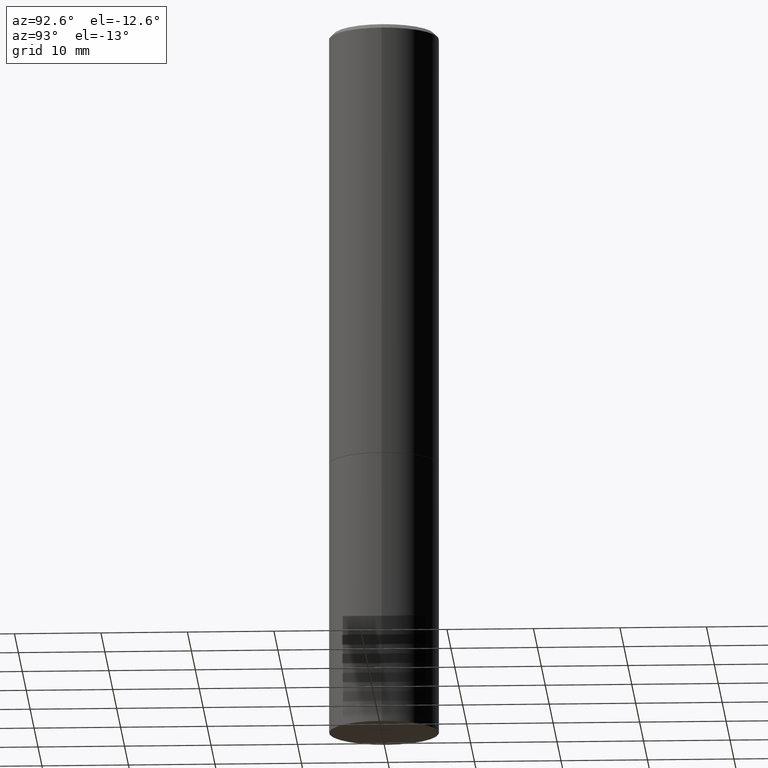
[diagram: clean part render]
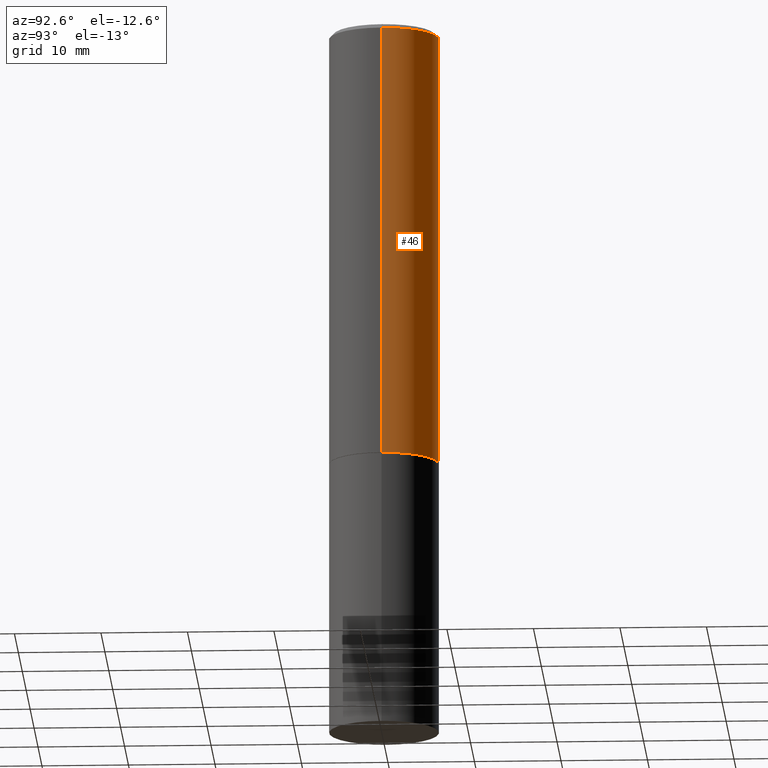
[diagram: same view with one face highlighted and labeled with its STEP entity id]
A machine part, auxiliary view. The second image highlights one B-rep face of the part: STEP entity #46.
In plain terms, the highlighted cylindrical surface (partial cylindrical patch) has radius 6.35 mm, axis along (-0, 0, 1).
Its self-contained STEP definition (entity closure, byte-faithful):
#16 = DIRECTION ( 'NONE',  ( -2.445468806185136877E-29, 3.491481338843145188E-15, 1.000000000000000000 ) ) ;
#20 = CARTESIAN_POINT ( 'NONE',  ( 4.890937612370288923E-31, -6.982962677686312563E-17, -0.02000000000000006287 ) ) ;
#23 = DIRECTION ( 'NONE',  ( -2.445468806185136597E-29, 3.491481338843145583E-15, 1.000000000000000000 ) ) ;
#46 = ADVANCED_FACE ( 'NONE', ( #223 ), #133, .T. ) ;
#49 = EDGE_CURVE ( 'NONE', #345, #295, #219, .T. ) ;
#54 = CARTESIAN_POINT ( 'NONE',  ( -0.2499999999999998890, 1.776356839400249676E-15, -1.229733772563726025E-29 ) ) ;
#58 = EDGE_LOOP ( 'NONE', ( #366, #308, #176, #188 ) ) ;
#66 = EDGE_CURVE ( 'NONE', #311, #251, #180, .T. ) ;
#76 = DIRECTION ( 'NONE',  ( -2.445468806185136597E-29, 3.491481338843145583E-15, 1.000000000000000000 ) ) ;
#77 = CIRCLE ( 'NONE', #279, 0.2500000000000000000 ) ;
#83 = AXIS2_PLACEMENT_3D ( 'NONE', #20, #76, #132 ) ;
#100 = DIRECTION ( 'NONE',  ( -2.445468806185136877E-29, 3.491481338843145188E-15, 1.000000000000000000 ) ) ;
#103 = EDGE_CURVE ( 'NONE', #311, #345, #77, .T. ) ;
#105 = CARTESIAN_POINT ( 'NONE',  ( -0.2500000000000000000, -1.748293572161903489E-15, -1.998999999999999888 ) ) ;
#132 = DIRECTION ( 'NONE',  ( 1.000000000000000000, -6.982962677686266711E-15, 0.000000000000000000 ) ) ;
#133 = CYLINDRICAL_SURFACE ( 'NONE', #211, 0.2499999999999998890 ) ;
#145 = VECTOR ( 'NONE', #16, 39.37007874015748143 ) ;
#160 = DIRECTION ( 'NONE',  ( 1.000000000000000000, -6.982962677686266711E-15, 4.876176775795935793E-29 ) ) ;
#168 = CARTESIAN_POINT ( 'NONE',  ( 0.000000000000000000, 0.000000000000000000, 0.000000000000000000 ) ) ;
#176 = ORIENTED_EDGE ( 'NONE', *, *, #252, .F. ) ;
#177 = DIRECTION ( 'NONE',  ( 1.000000000000000000, -6.982962677686266711E-15, 0.000000000000000000 ) ) ;
#180 = LINE ( 'NONE', #256, #184 ) ;
#184 = VECTOR ( 'NONE', #100, 39.37007874015748143 ) ;
#188 = ORIENTED_EDGE ( 'NONE', *, *, #66, .F. ) ;
#207 = CARTESIAN_POINT ( 'NONE',  ( 4.888492143564087591E-29, -6.979471196347447369E-15, -1.998999999999999888 ) ) ;
#211 = AXIS2_PLACEMENT_3D ( 'NONE', #168, #23, #160 ) ;
#219 = LINE ( 'NONE', #54, #145 ) ;
#221 = CARTESIAN_POINT ( 'NONE',  ( 0.2499999999999998057, -1.784954126219744611E-15, -0.02000000000000006287 ) ) ;
#223 = FACE_OUTER_BOUND ( 'NONE', #58, .T. ) ;
#237 = DIRECTION ( 'NONE',  ( -2.445468806185136597E-29, 3.491481338843145583E-15, 1.000000000000000000 ) ) ;
#251 = VERTEX_POINT ( 'NONE', #221 ) ;
#252 = EDGE_CURVE ( 'NONE', #251, #295, #280, .T. ) ;
#256 = CARTESIAN_POINT ( 'NONE',  ( 0.2499999999999998890, -1.745740669421565889E-15, 1.219044193948983388E-29 ) ) ;
#279 = AXIS2_PLACEMENT_3D ( 'NONE', #207, #237, #177 ) ;
#280 = CIRCLE ( 'NONE', #83, 0.2499999999999998057 ) ;
#295 = VERTEX_POINT ( 'NONE', #362 ) ;
#297 = CARTESIAN_POINT ( 'NONE',  ( 0.2500000000000000000, -8.725211865769014047E-15, -1.998999999999999888 ) ) ;
#308 = ORIENTED_EDGE ( 'NONE', *, *, #49, .T. ) ;
#311 = VERTEX_POINT ( 'NONE', #297 ) ;
#345 = VERTEX_POINT ( 'NONE', #105 ) ;
#362 = CARTESIAN_POINT ( 'NONE',  ( -0.2499999999999998057, 1.675911042644702196E-15, -0.02000000000000006287 ) ) ;
#366 = ORIENTED_EDGE ( 'NONE', *, *, #103, .T. ) ;